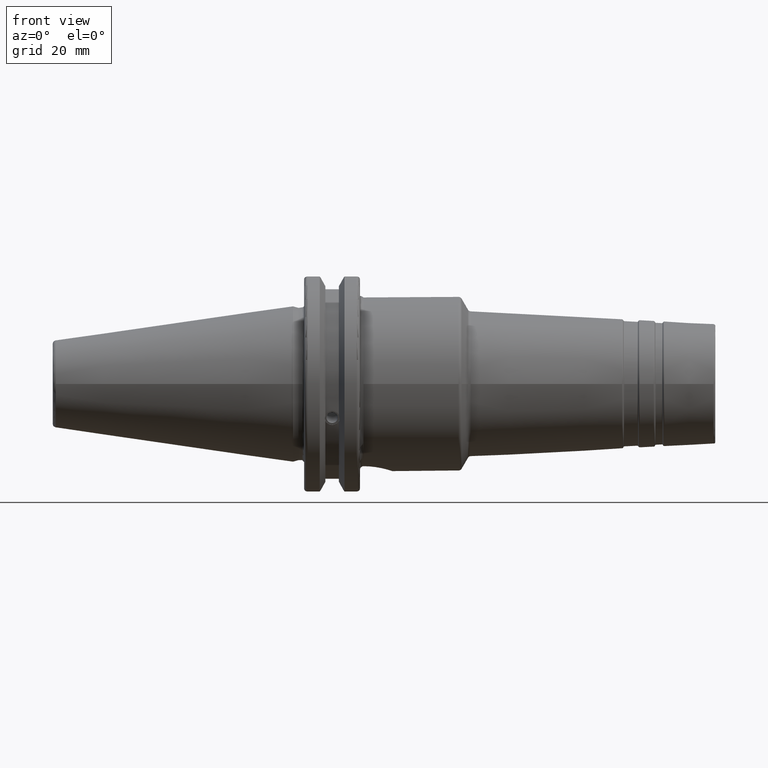
[diagram: clean part render]
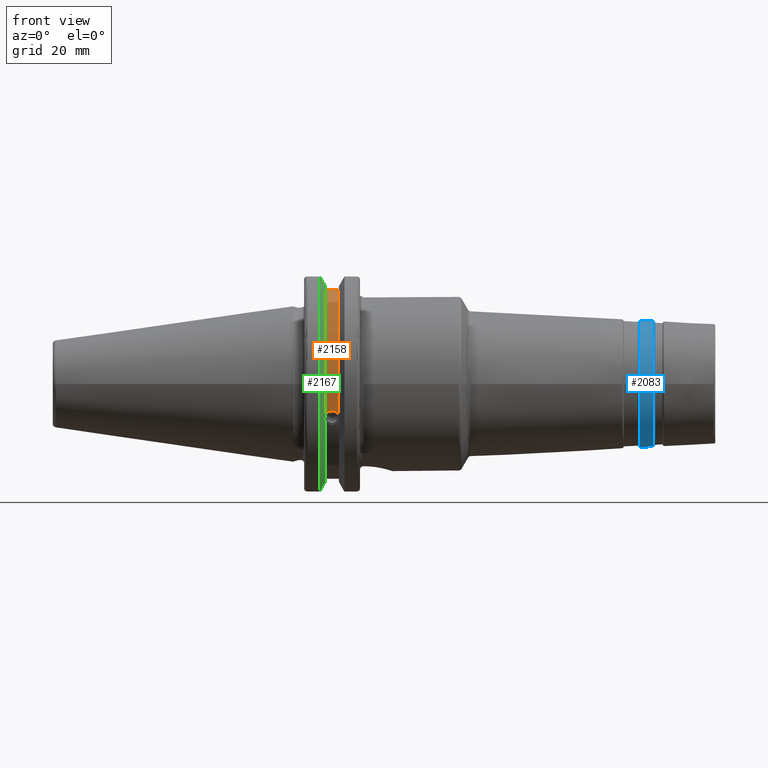
[diagram: same view with three faces highlighted in distinct colors, each labeled with its STEP entity id]
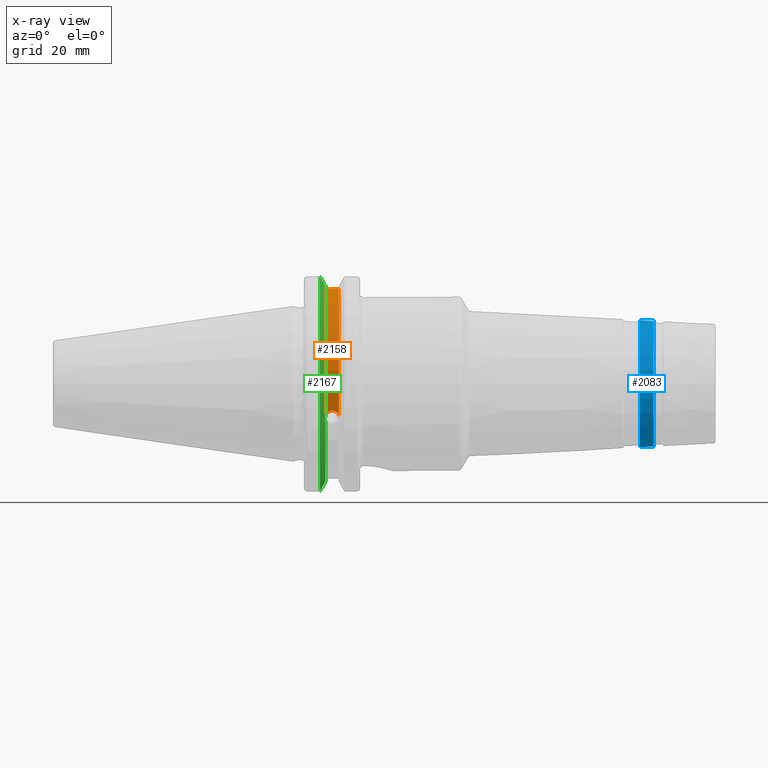
[diagram: x-ray of the same camera — body ghosted, the three highlighted faces saturated]
A machine part, front view with three faces highlighted in distinct colors.
The next image is the same camera in x-ray (body ghosted, the three faces saturated) — at least one of them is partly hidden behind the body in this view.
Their STEP definitions:

[orange] entity #2158 — the highlighted cylindrical surface (partial cylindrical patch) has radius 28.15 mm, axis along (1, 0, 0).
#149=B_SPLINE_CURVE_WITH_KNOTS('',3,(#3603,#3604,#3605,#3606,#3607,#3608,
#3609,#3610,#3611,#3612,#3613,#3614,#3615,#3616),.UNSPECIFIED.,.F.,.F.,
(4,2,2,2,2,2,4),(0.401639126382404,0.474814416953736,0.553950208498303,
0.63308600004287,0.712221791587437,0.791357583132004,0.864532873703336),
 .UNSPECIFIED.);
#269=FACE_OUTER_BOUND('',#388,.T.);
#388=EDGE_LOOP('',(#1971,#1972,#1973,#1974));
#473=LINE('',#4035,#572);
#572=VECTOR('',#3026,10.);
#764=CIRCLE('',#2468,28.15);
#765=CIRCLE('',#2469,28.15);
#885=VERTEX_POINT('',#3600);
#886=VERTEX_POINT('',#3602);
#979=VERTEX_POINT('',#4032);
#980=VERTEX_POINT('',#4034);
#1162=EDGE_CURVE('',#886,#885,#149,.T.);
#1287=EDGE_CURVE('',#980,#979,#473,.T.);
#1342=EDGE_CURVE('',#980,#885,#764,.T.);
#1343=EDGE_CURVE('',#979,#886,#765,.T.);
#1971=ORIENTED_EDGE('',*,*,#1162,.T.);
#1972=ORIENTED_EDGE('',*,*,#1342,.F.);
#1973=ORIENTED_EDGE('',*,*,#1287,.T.);
#1974=ORIENTED_EDGE('',*,*,#1343,.T.);
#2061=CYLINDRICAL_SURFACE('',#2467,28.15);
#2158=ADVANCED_FACE('',(#269),#2061,.T.);
#2467=AXIS2_PLACEMENT_3D('',#4191,#3140,#3141);
#2468=AXIS2_PLACEMENT_3D('',#4192,#3142,#3143);
#2469=AXIS2_PLACEMENT_3D('',#4193,#3144,#3145);
#3026=DIRECTION('',(-1.,0.,0.));
#3140=DIRECTION('center_axis',(1.,0.,0.));
#3141=DIRECTION('ref_axis',(0.,-0.887654187951484,0.46051063246378));
#3142=DIRECTION('center_axis',(1.,0.,0.));
#3143=DIRECTION('ref_axis',(0.,0.,-1.));
#3144=DIRECTION('center_axis',(1.,0.,0.));
#3145=DIRECTION('ref_axis',(0.,0.,-1.));
#3600=CARTESIAN_POINT('',(13.0491,-26.734714844398,-8.81348524641211));
#3602=CARTESIAN_POINT('',(9.2191,-26.734714844398,-8.81348524641212));
#3603=CARTESIAN_POINT('Ctrl Pts',(9.2191,-26.734714844398,-8.81348524641212));
#3604=CARTESIAN_POINT('Ctrl Pts',(9.32533057097183,-26.8086519721597,-8.58920529678291));
#3605=CARTESIAN_POINT('Ctrl Pts',(9.47682013770509,-26.8729987454904,-8.38416529997369));
#3606=CARTESIAN_POINT('Ctrl Pts',(9.83557062657411,-26.9778908791383,-8.04056861831091));
#3607=CARTESIAN_POINT('Ctrl Pts',(10.0716450112988,-27.0233016799732,-7.88512567185902));
#3608=CARTESIAN_POINT('Ctrl Pts',(10.5890125426388,-27.0826966800569,-7.6786444840004));
#3609=CARTESIAN_POINT('Ctrl Pts',(10.8703140281848,-27.0968804077294,-7.62768458768512));
#3610=CARTESIAN_POINT('Ctrl Pts',(11.3978859718152,-27.0968804077294,-7.62768458768512));
#3611=CARTESIAN_POINT('Ctrl Pts',(11.6791874573612,-27.0826966800569,-7.6786444840004));
#3612=CARTESIAN_POINT('Ctrl Pts',(12.1965549887012,-27.0233016799732,-7.88512567185902));
#3613=CARTESIAN_POINT('Ctrl Pts',(12.4326293734259,-26.9778908791383,-8.04056861831091));
#3614=CARTESIAN_POINT('Ctrl Pts',(12.7913798622949,-26.8729987454904,-8.38416529997369));
#3615=CARTESIAN_POINT('Ctrl Pts',(12.9428694290282,-26.8086519721597,-8.58920529678291));
#3616=CARTESIAN_POINT('Ctrl Pts',(13.0491,-26.734714844398,-8.81348524641211));
#4032=CARTESIAN_POINT('',(9.2191,-8.19,26.932255754021));
#4034=CARTESIAN_POINT('',(13.0491,-8.19,26.932255754021));
#4035=CARTESIAN_POINT('',(11.1341,-8.19,26.932255754021));
#4191=CARTESIAN_POINT('Origin',(11.1341,0.,0.));
#4192=CARTESIAN_POINT('Origin',(13.0491,0.,0.));
#4193=CARTESIAN_POINT('Origin',(9.2191,0.,0.));

[blue] entity #2083 — the highlighted conical surface has half-angle 3 deg.
#111=CONICAL_SURFACE('',#2278,18.0202570867172,0.0523598775598298);
#194=FACE_OUTER_BOUND('',#303,.T.);
#303=EDGE_LOOP('',(#1500,#1501,#1502,#1503,#1504,#1505,#1506,#1507));
#414=LINE('',#3444,#513);
#513=VECTOR('',#2681,18.0202570867172);
#665=CIRCLE('',#2275,17.9166117566925);
#666=CIRCLE('',#2276,17.9166117566925);
#667=CIRCLE('',#2277,17.9166117566925);
#668=CIRCLE('',#2279,18.1239024167419);
#669=CIRCLE('',#2280,18.1239024167419);
#670=CIRCLE('',#2281,18.1239024167419);
#837=VERTEX_POINT('',#3435);
#838=VERTEX_POINT('',#3437);
#839=VERTEX_POINT('',#3439);
#840=VERTEX_POINT('',#3443);
#841=VERTEX_POINT('',#3445);
#842=VERTEX_POINT('',#3447);
#1097=EDGE_CURVE('',#837,#838,#665,.T.);
#1098=EDGE_CURVE('',#838,#839,#666,.T.);
#1099=EDGE_CURVE('',#839,#837,#667,.T.);
#1100=EDGE_CURVE('',#838,#840,#414,.T.);
#1101=EDGE_CURVE('',#841,#840,#668,.T.);
#1102=EDGE_CURVE('',#842,#841,#669,.T.);
#1103=EDGE_CURVE('',#840,#842,#670,.T.);
#1500=ORIENTED_EDGE('',*,*,#1099,.F.);
#1501=ORIENTED_EDGE('',*,*,#1098,.F.);
#1502=ORIENTED_EDGE('',*,*,#1100,.T.);
#1503=ORIENTED_EDGE('',*,*,#1101,.F.);
#1504=ORIENTED_EDGE('',*,*,#1102,.F.);
#1505=ORIENTED_EDGE('',*,*,#1103,.F.);
#1506=ORIENTED_EDGE('',*,*,#1100,.F.);
#1507=ORIENTED_EDGE('',*,*,#1097,.F.);
#2083=ADVANCED_FACE('',(#194),#111,.T.);
#2275=AXIS2_PLACEMENT_3D('',#3438,#2673,#2674);
#2276=AXIS2_PLACEMENT_3D('',#3440,#2675,#2676);
#2277=AXIS2_PLACEMENT_3D('',#3441,#2677,#2678);
#2278=AXIS2_PLACEMENT_3D('',#3442,#2679,#2680);
#2279=AXIS2_PLACEMENT_3D('',#3446,#2682,#2683);
#2280=AXIS2_PLACEMENT_3D('',#3448,#2684,#2685);
#2281=AXIS2_PLACEMENT_3D('',#3449,#2686,#2687);
#2673=DIRECTION('center_axis',(1.,0.,0.));
#2674=DIRECTION('ref_axis',(0.,-1.,3.06161699786838E-17));
#2675=DIRECTION('center_axis',(1.,0.,0.));
#2676=DIRECTION('ref_axis',(0.,-1.,3.06161699786838E-17));
#2677=DIRECTION('center_axis',(1.,0.,0.));
#2678=DIRECTION('ref_axis',(0.,-1.,3.06161699786838E-17));
#2679=DIRECTION('center_axis',(-1.,0.,0.));
#2680=DIRECTION('ref_axis',(0.,1.,0.));
#2681=DIRECTION('',(-0.998629534754574,-0.0523359562429437,-6.4093061293237E-18));
#2682=DIRECTION('center_axis',(-1.,0.,0.));
#2683=DIRECTION('ref_axis',(0.,-1.,3.06161699786838E-17));
#2684=DIRECTION('center_axis',(-1.,0.,0.));
#2685=DIRECTION('ref_axis',(0.,-1.,3.06161699786838E-17));
#2686=DIRECTION('center_axis',(-1.,0.,0.));
#2687=DIRECTION('ref_axis',(0.,-1.,3.06161699786838E-17));
#3435=CARTESIAN_POINT('',(102.510005780972,-2.19415212393993E-15,17.9166117566925));
#3437=CARTESIAN_POINT('',(102.510005780972,-17.9166117566925,-2.19415212393993E-15));
#3438=CARTESIAN_POINT('Origin',(102.510005780972,0.,-2.74269015492491E-15));
#3439=CARTESIAN_POINT('',(102.510005780972,17.9166117566925,-1.09707606196996E-15));
#3440=CARTESIAN_POINT('Origin',(102.510005780972,0.,-2.74269015492491E-15));
#3441=CARTESIAN_POINT('Origin',(102.510005780972,0.,-2.74269015492491E-15));
#3442=CARTESIAN_POINT('Origin',(100.532335071726,0.,0.));
#3443=CARTESIAN_POINT('',(98.5546643624796,-18.1239024167419,-2.2195379082722E-15));
#3444=CARTESIAN_POINT('',(100.532335071726,-18.0202570867172,-2.20684501610606E-15));
#3445=CARTESIAN_POINT('',(98.5546643624796,18.1239024167419,-5.54884477068049E-15));
#3446=CARTESIAN_POINT('Origin',(98.5546643624796,0.,-2.77442238534024E-15));
#3447=CARTESIAN_POINT('',(98.5546643624796,-2.2195379082722E-15,18.1239024167419));
#3448=CARTESIAN_POINT('Origin',(98.5546643624796,0.,-2.77442238534024E-15));
#3449=CARTESIAN_POINT('Origin',(98.5546643624796,0.,-2.77442238534024E-15));

[green] entity #2167 — the highlighted conical surface has half-angle 60 deg.
#25=(
BOUNDED_CURVE()
B_SPLINE_CURVE(2,(#4029,#4030,#4031),.UNSPECIFIED.,.F.,.F.)
B_SPLINE_CURVE_WITH_KNOTS((3,3),(0.,0.276549142796136),.UNSPECIFIED.)
CURVE()
GEOMETRIC_REPRESENTATION_ITEM()
RATIONAL_B_SPLINE_CURVE((1.,1.00095203903316,1.00031614444813))
REPRESENTATION_ITEM('')
);
#26=(
BOUNDED_CURVE()
B_SPLINE_CURVE(2,(#4041,#4042,#4043),.UNSPECIFIED.,.F.,.F.)
B_SPLINE_CURVE_WITH_KNOTS((3,3),(0.0550586467392022,0.33160778953585),
 .UNSPECIFIED.)
CURVE()
GEOMETRIC_REPRESENTATION_ITEM()
RATIONAL_B_SPLINE_CURVE((1.00031614445148,1.00095203904325,1.))
REPRESENTATION_ITEM('')
);
#27=(
BOUNDED_CURVE()
B_SPLINE_CURVE(2,(#4076,#4077,#4078),.UNSPECIFIED.,.F.,.F.)
B_SPLINE_CURVE_WITH_KNOTS((3,3),(0.,0.0639048713676282),.UNSPECIFIED.)
CURVE()
GEOMETRIC_REPRESENTATION_ITEM()
RATIONAL_B_SPLINE_CURVE((1.,1.00028444218284,1.00047644010574))
REPRESENTATION_ITEM('')
);
#28=(
BOUNDED_CURVE()
B_SPLINE_CURVE(2,(#4084,#4085,#4086),.UNSPECIFIED.,.F.,.F.)
B_SPLINE_CURVE_WITH_KNOTS((3,3),(0.329353533631205,0.393258405001025),
 .UNSPECIFIED.)
CURVE()
GEOMETRIC_REPRESENTATION_ITEM()
RATIONAL_B_SPLINE_CURVE((1.00047644010572,1.00028444218283,1.))
REPRESENTATION_ITEM('')
);
#124=CONICAL_SURFACE('',#2483,30.3546886482472,1.0471975511966);
#150=B_SPLINE_CURVE_WITH_KNOTS('',3,(#3620,#3621,#3622,#3623,#3624,#3625,
#3626,#3627,#3628,#3629,#3630,#3631,#3632,#3633),.UNSPECIFIED.,.F.,.F.,
(4,2,2,2,2,2,4),(0.451995700189024,0.464547828547662,0.504528771685167,
0.544509714822672,0.584490657960178,0.624471601097683,0.63702372945632),
 .UNSPECIFIED.);
#278=FACE_OUTER_BOUND('',#399,.T.);
#399=EDGE_LOOP('',(#2021,#2022,#2023,#2024,#2025,#2026,#2027,#2028));
#712=CIRCLE('',#2358,28.9593772964944);
#745=CIRCLE('',#2427,31.75);
#771=CIRCLE('',#2484,28.9593772964944);
#887=VERTEX_POINT('',#3617);
#888=VERTEX_POINT('',#3619);
#908=VERTEX_POINT('',#3717);
#977=VERTEX_POINT('',#4026);
#978=VERTEX_POINT('',#4028);
#981=VERTEX_POINT('',#4040);
#985=VERTEX_POINT('',#4074);
#986=VERTEX_POINT('',#4080);
#1164=EDGE_CURVE('',#888,#887,#150,.T.);
#1191=EDGE_CURVE('',#888,#908,#712,.T.);
#1285=EDGE_CURVE('',#978,#977,#25,.T.);
#1291=EDGE_CURVE('',#981,#908,#26,.T.);
#1299=EDGE_CURVE('',#985,#977,#27,.T.);
#1301=EDGE_CURVE('',#985,#986,#745,.T.);
#1302=EDGE_CURVE('',#981,#986,#28,.T.);
#1352=EDGE_CURVE('',#978,#887,#771,.T.);
#2021=ORIENTED_EDGE('',*,*,#1164,.T.);
#2022=ORIENTED_EDGE('',*,*,#1352,.F.);
#2023=ORIENTED_EDGE('',*,*,#1285,.T.);
#2024=ORIENTED_EDGE('',*,*,#1299,.F.);
#2025=ORIENTED_EDGE('',*,*,#1301,.T.);
#2026=ORIENTED_EDGE('',*,*,#1302,.F.);
#2027=ORIENTED_EDGE('',*,*,#1291,.T.);
#2028=ORIENTED_EDGE('',*,*,#1191,.F.);
#2167=ADVANCED_FACE('',(#278),#124,.T.);
#2358=AXIS2_PLACEMENT_3D('',#3718,#2865,#2866);
#2427=AXIS2_PLACEMENT_3D('',#4082,#3044,#3045);
#2483=AXIS2_PLACEMENT_3D('',#4214,#3175,#3176);
#2484=AXIS2_PLACEMENT_3D('',#4215,#3177,#3178);
#2865=DIRECTION('center_axis',(1.,0.,0.));
#2866=DIRECTION('ref_axis',(0.,0.,-1.));
#3044=DIRECTION('center_axis',(1.,0.,0.));
#3045=DIRECTION('ref_axis',(0.,0.,-1.));
#3175=DIRECTION('center_axis',(-1.,0.,0.));
#3176=DIRECTION('ref_axis',(0.,-1.,-1.22464679914735E-16));
#3177=DIRECTION('center_axis',(1.,0.,0.));
#3178=DIRECTION('ref_axis',(0.,0.,-1.));
#3617=CARTESIAN_POINT('',(9.2191,-27.4956274489925,-9.09043478536245));
#3619=CARTESIAN_POINT('',(9.2191,-26.9060914640648,-10.7101715919071));
#3620=CARTESIAN_POINT('Ctrl Pts',(9.2191,-26.9060914640648,-10.7101715919071));
#3621=CARTESIAN_POINT('Ctrl Pts',(9.20497959280038,-26.9406927482839,-10.6893765730703));
#3622=CARTESIAN_POINT('Ctrl Pts',(9.19150701821434,-26.9744191989197,-10.6676007180673));
#3623=CARTESIAN_POINT('Ctrl Pts',(9.13811855884095,-27.1113422433189,-10.5723885976054));
#3624=CARTESIAN_POINT('Ctrl Pts',(9.09998029158246,-27.2180531796526,-10.4801333026531));
#3625=CARTESIAN_POINT('Ctrl Pts',(9.04778935539424,-27.3968610665578,-10.2639559818059));
#3626=CARTESIAN_POINT('Ctrl Pts',(9.0341,-27.4684373304961,-10.139516340139));
#3627=CARTESIAN_POINT('Ctrl Pts',(9.0341,-27.559599249844,-9.8890510252165));
#3628=CARTESIAN_POINT('Ctrl Pts',(9.04778935539424,-27.5847569104122,-9.74771639360671));
#3629=CARTESIAN_POINT('Ctrl Pts',(9.09998029158246,-27.5867382255984,-9.46717946402648));
#3630=CARTESIAN_POINT('Ctrl Pts',(9.13811855884095,-27.5642934663232,-9.32791534028656));
#3631=CARTESIAN_POINT('Ctrl Pts',(9.19150701821434,-27.5206055003512,-9.16696618806877));
#3632=CARTESIAN_POINT('Ctrl Pts',(9.20497959280038,-27.5087667900418,-9.12860597076218));
#3633=CARTESIAN_POINT('Ctrl Pts',(9.2191,-27.4956274489925,-9.09043478536245));
#3717=CARTESIAN_POINT('',(9.2191,-8.19,-27.7771386827498));
#3718=CARTESIAN_POINT('Origin',(9.2191,0.,0.));
#4026=CARTESIAN_POINT('',(7.88668530351257,-8.19,30.1755016258903));
#4028=CARTESIAN_POINT('',(9.2191,-8.19,27.7771386827498));
#4029=CARTESIAN_POINT('Ctrl Pts',(9.2191,-8.19,27.7771386827498));
#4030=CARTESIAN_POINT('Ctrl Pts',(8.58046356152393,-8.19,28.9303689539705));
#4031=CARTESIAN_POINT('Ctrl Pts',(7.88668530351257,-8.19,30.1755016258903));
#4040=CARTESIAN_POINT('',(7.88668530351256,-8.19,-30.1755016258903));
#4041=CARTESIAN_POINT('Ctrl Pts',(7.88668530351256,-8.19,-30.1755016258903));
#4042=CARTESIAN_POINT('Ctrl Pts',(8.5804635615235,-8.19,-28.9303689539712));
#4043=CARTESIAN_POINT('Ctrl Pts',(9.2191,-8.19,-27.7771386827498));
#4074=CARTESIAN_POINT('',(7.60793323092436,-8.67204822802685,30.5427254764662));
#4076=CARTESIAN_POINT('Ctrl Pts',(7.60793323092436,-8.67204822802686,30.5427254764662));
#4077=CARTESIAN_POINT('Ctrl Pts',(7.74899148121626,-8.42917748262648,30.357706789263));
#4078=CARTESIAN_POINT('Ctrl Pts',(7.88668530351257,-8.19,30.1755016258903));
#4080=CARTESIAN_POINT('',(7.60793323092436,-8.67204822802685,-30.5427254764662));
#4082=CARTESIAN_POINT('Origin',(7.60793323092436,0.,0.));
#4084=CARTESIAN_POINT('Ctrl Pts',(7.88668530351256,-8.19,-30.1755016258903));
#4085=CARTESIAN_POINT('Ctrl Pts',(7.74899148121159,-8.42917748263467,-30.3577067892692));
#4086=CARTESIAN_POINT('Ctrl Pts',(7.60793323092435,-8.67204822802687,-30.5427254764662));
#4214=CARTESIAN_POINT('Origin',(8.41351661546218,0.,0.));
#4215=CARTESIAN_POINT('Origin',(9.2191,0.,0.));